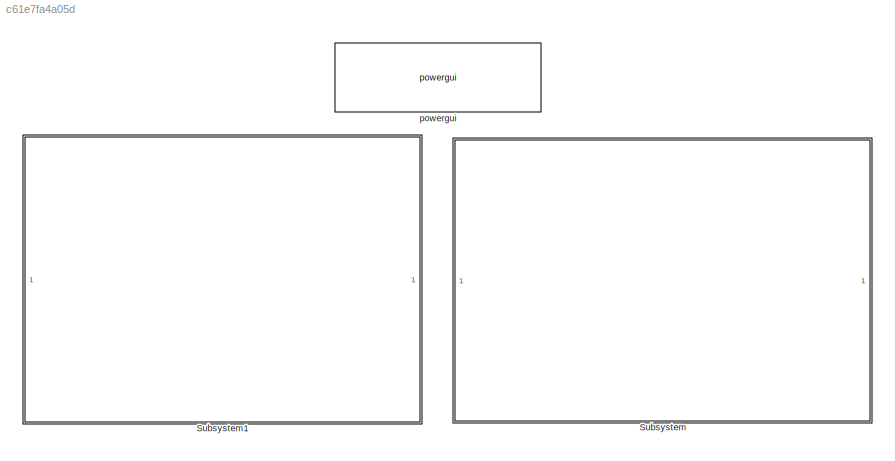
MODEL slx_c61e7fa4a05d
KIND model
CONFIG AbsTol = auto
CONFIG EnableMultiTasking = off
CONFIG FixedStep = auto
CONFIG MaxStep = auto
CONFIG MinStep = auto
CONFIG RelTol = 1e-3
CONFIG SampleTimeConstraint = Unconstrained
CONFIG SolverName = FixedStepAuto
CONFIG StartTime = 0.0
CONFIG StopTime = 10.0
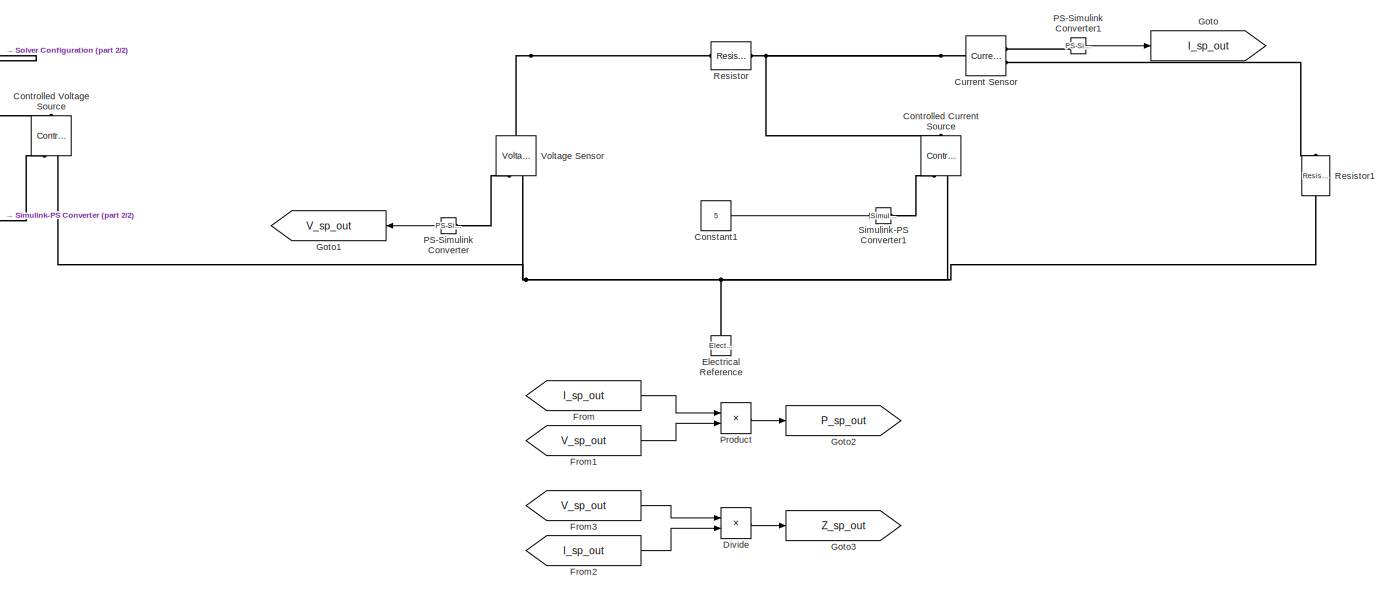
[diagram: Subsystem - part 1/2, most of the canvas]
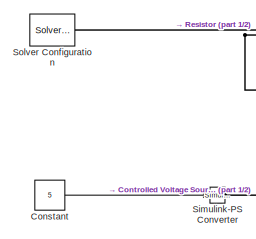
[diagram: Subsystem - part 2/2, top left region]
BLOCK [SubSystem] Subsystem
  Ports = []
  RequestExecContextInheritance = off
BLOCK [Constant] Subsystem/Constant
  Value = 5
BLOCK [Constant] Subsystem/Constant1
  Value = 5
BLOCK [Reference] Subsystem/Controlled Current Source  REF=fl_lib/Electrical/Electrical Sources/Controlled Current
Source
  NameLocation = right
  Ports = [0, 0, 0, 0, 0, 1, 2]
  SourceBlock = fl_lib/Electrical/Electrical Sources/Controlled Current\nSource
  SourceProductBaseCode = PW,SS,VE
  SourceType = Controlled Current\nSource
BLOCK [Reference] Subsystem/Controlled Voltage Source  REF=fl_lib/Electrical/Electrical Sources/Controlled Voltage
Source
  NameLocation = right
  Ports = [0, 0, 0, 0, 0, 1, 2]
  SourceBlock = fl_lib/Electrical/Electrical Sources/Controlled Voltage\nSource
  SourceProductBaseCode = PW,SS,VE
  SourceType = Controlled Voltage\nSource
BLOCK [Reference] Subsystem/Current Sensor  REF=fl_lib/Electrical/Electrical Sensors/Current Sensor
  Ports = [0, 0, 0, 0, 0, 1, 2]
  SourceBlock = fl_lib/Electrical/Electrical Sensors/Current Sensor
  SourceProductBaseCode = PW,SS,VE
  SourceType = Current Sensor
BLOCK [Product] Subsystem/Divide
  Inputs = */
  Ports = [2, 1]
BLOCK [Reference] Subsystem/Electrical Reference  REF=fl_lib/Electrical/Electrical Elements/Electrical Reference
  NameLocation = right
  Ports = [0, 0, 0, 0, 0, 1]
  SourceBlock = fl_lib/Electrical/Electrical Elements/Electrical Reference
  SourceProductBaseCode = PW,SS,VE
  SourceType = Electrical Reference
BLOCK [From] Subsystem/From
  GotoTag = I_sp_out
  TagVisibility = global
BLOCK [From] Subsystem/From1
  GotoTag = V_sp_out
  TagVisibility = global
BLOCK [From] Subsystem/From2
  GotoTag = I_sp_out
  TagVisibility = global
BLOCK [From] Subsystem/From3
  GotoTag = V_sp_out
  TagVisibility = global
BLOCK [Goto] Subsystem/Goto
  GotoTag = I_sp_out
  TagVisibility = global
BLOCK [Goto] Subsystem/Goto1
  GotoTag = V_sp_out
  NameLocation = top
  TagVisibility = global
BLOCK [Goto] Subsystem/Goto2
  GotoTag = P_sp_out
  TagVisibility = global
BLOCK [Goto] Subsystem/Goto3
  GotoTag = Z_sp_out
  TagVisibility = global
BLOCK [Reference] Subsystem/PS-Simulink Converter  REF=nesl_utility/PS-Simulink
Converter
  NameLocation = top
  Ports = [0, 1, 0, 0, 0, 1]
  SourceBlock = nesl_utility/PS-Simulink\nConverter
  SourceProductBaseCode = SS,PW,VE
  SourceType = PS-Simulink\nConverter
BLOCK [Reference] Subsystem/PS-Simulink Converter1  REF=nesl_utility/PS-Simulink
Converter
  Ports = [0, 1, 0, 0, 0, 1]
  SourceBlock = nesl_utility/PS-Simulink\nConverter
  SourceProductBaseCode = SS,PW,VE
  SourceType = PS-Simulink\nConverter
BLOCK [Product] Subsystem/Product
  Ports = [2, 1]
BLOCK [Reference] Subsystem/Resistor  REF=fl_lib/Electrical/Electrical Elements/Resistor
  Ports = [0, 0, 0, 0, 0, 1, 1]
  SourceBlock = fl_lib/Electrical/Electrical Elements/Resistor
  SourceProductBaseCode = PW,SS,VE
  SourceType = Resistor
BLOCK [Reference] Subsystem/Resistor1  REF=fl_lib/Electrical/Electrical Elements/Resistor
  NameLocation = left
  Ports = [0, 0, 0, 0, 0, 1, 1]
  SourceBlock = fl_lib/Electrical/Electrical Elements/Resistor
  SourceProductBaseCode = PW,SS,VE
  SourceType = Resistor
BLOCK [Reference] Subsystem/Simulink-PS Converter  REF=nesl_utility/Simulink-PS
Converter
  Ports = [1, 0, 0, 0, 0, 0, 1]
  SourceBlock = nesl_utility/Simulink-PS\nConverter
  SourceProductBaseCode = SS,PW,VE
  SourceType = Simulink-PS\nConverter
BLOCK [Reference] Subsystem/Simulink-PS Converter1  REF=nesl_utility/Simulink-PS
Converter
  Ports = [1, 0, 0, 0, 0, 0, 1]
  SourceBlock = nesl_utility/Simulink-PS\nConverter
  SourceProductBaseCode = SS,PW,VE
  SourceType = Simulink-PS\nConverter
BLOCK [Reference] Subsystem/Solver Configuration  REF=nesl_utility/Solver
Configuration
  Ports = [0, 0, 0, 0, 0, 0, 1]
  SourceBlock = nesl_utility/Solver\nConfiguration
  SourceProductBaseCode = SS,PW,VE
  SourceType = Solver\nConfiguration
BLOCK [Reference] Subsystem/Voltage Sensor  REF=fl_lib/Electrical/Electrical Sensors/Voltage Sensor
  NameLocation = right
  Ports = [0, 0, 0, 0, 0, 1, 2]
  SourceBlock = fl_lib/Electrical/Electrical Sensors/Voltage Sensor
  SourceProductBaseCode = PW,SS,VE
  SourceType = Voltage Sensor
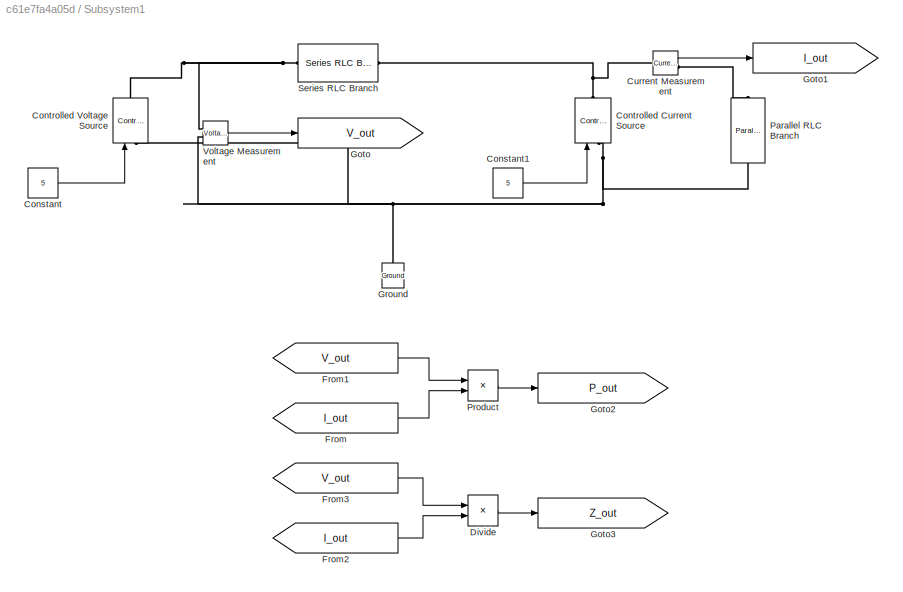
BLOCK [SubSystem] Subsystem1
  Ports = []
  RequestExecContextInheritance = off
BLOCK [Constant] Subsystem1/Constant
  Value = 5
BLOCK [Constant] Subsystem1/Constant1
  Value = 5
BLOCK [Reference] Subsystem1/Controlled Current Source  REF=spsControlledCurrentSourceLib/Controlled Current Source
  Ports = [1, 0, 0, 0, 0, 1, 1]
  SourceBlock = spsControlledCurrentSourceLib/Controlled Current Source
  SourceProductBaseCode = PS
  SourceType = Controlled Current Source
BLOCK [Reference] Subsystem1/Controlled Voltage Source  REF=spsControlledVoltageSourceLib/Controlled Voltage Source
  Ports = [1, 0, 0, 0, 0, 1, 1]
  SourceBlock = spsControlledVoltageSourceLib/Controlled Voltage Source
  SourceProductBaseCode = PS
  SourceType = Controlled Voltage Source
BLOCK [Reference] Subsystem1/Current Measurement  REF=spsCurrentMeasurementLib/Current Measurement
  Ports = [0, 1, 0, 0, 0, 1, 1]
  SourceBlock = spsCurrentMeasurementLib/Current Measurement
  SourceProductBaseCode = PS
  SourceType = Current Measurement
  UserDataPersistent = on
BLOCK [Product] Subsystem1/Divide
  Inputs = */
  Ports = [2, 1]
BLOCK [From] Subsystem1/From
  GotoTag = I_out
BLOCK [From] Subsystem1/From1
  GotoTag = V_out
BLOCK [From] Subsystem1/From2
  GotoTag = I_out
BLOCK [From] Subsystem1/From3
  GotoTag = V_out
BLOCK [Goto] Subsystem1/Goto
  GotoTag = V_out
BLOCK [Goto] Subsystem1/Goto1
  GotoTag = I_out
BLOCK [Goto] Subsystem1/Goto2
  GotoTag = P_out
  TagVisibility = global
BLOCK [Goto] Subsystem1/Goto3
  GotoTag = Z_out
  TagVisibility = global
BLOCK [Reference] Subsystem1/Ground  REF=spsGroundLib/Ground
  NameLocation = right
  Ports = [0, 0, 0, 0, 0, 1]
  SourceBlock = spsGroundLib/Ground
  SourceProductBaseCode = PS
  SourceType = Ground
BLOCK [Reference] Subsystem1/Parallel RLC Branch  REF=spsParallelRLCBranchLib/Parallel RLC Branch
  AttributesFormatString = \n
  NameLocation = left
  Ports = [0, 0, 0, 0, 0, 1, 1]
  SourceBlock = spsParallelRLCBranchLib/Parallel RLC Branch
  SourceProductBaseCode = PS
  SourceType = Parallel RLC Branch
BLOCK [Product] Subsystem1/Product
  Ports = [2, 1]
BLOCK [Reference] Subsystem1/Series RLC Branch  REF=spsSeriesRLCBranchLib/Series RLC Branch
  Ports = [0, 0, 0, 0, 0, 1, 1]
  SourceBlock = spsSeriesRLCBranchLib/Series RLC Branch
  SourceProductBaseCode = PS
  SourceType = Series RLC Branch
BLOCK [Reference] Subsystem1/Voltage Measurement  REF=spsVoltageMeasurementLib/Voltage Measurement
  Ports = [0, 1, 0, 0, 0, 2]
  SourceBlock = spsVoltageMeasurementLib/Voltage Measurement
  SourceProductBaseCode = PS
  SourceType = Voltage Measurement
  UserDataPersistent = on
BLOCK [Reference] powergui  REF=spspowerguiLib/powergui
  Ports = []
  Priority = 1
  SourceBlock = spspowerguiLib/powergui
  SourceProductBaseCode = PS
  SourceType = PSB option menu block
LINE Subsystem/Constant1:1 -> Subsystem/Simulink-PS Converter1:1
LINE Subsystem/Constant:1 -> Subsystem/Simulink-PS Converter:1
LINE Subsystem/Divide:1 -> Subsystem/Goto3:1
LINE Subsystem/From1:1 -> Subsystem/Product:2
LINE Subsystem/From2:1 -> Subsystem/Divide:2
LINE Subsystem/From3:1 -> Subsystem/Divide:1
LINE Subsystem/From:1 -> Subsystem/Product:1
LINE Subsystem/PS-Simulink Converter1:1 -> Subsystem/Goto:1
LINE Subsystem/PS-Simulink Converter:1 -> Subsystem/Goto1:1
LINE Subsystem/Product:1 -> Subsystem/Goto2:1
LINE Subsystem1/Constant1:1 -> Subsystem1/Controlled Current Source:1
LINE Subsystem1/Constant:1 -> Subsystem1/Controlled Voltage Source:1
LINE Subsystem1/Current Measurement:1 -> Subsystem1/Goto1:1
LINE Subsystem1/Divide:1 -> Subsystem1/Goto3:1
LINE Subsystem1/From1:1 -> Subsystem1/Product:1
LINE Subsystem1/From2:1 -> Subsystem1/Divide:2
LINE Subsystem1/From3:1 -> Subsystem1/Divide:1
LINE Subsystem1/From:1 -> Subsystem1/Product:2
LINE Subsystem1/Product:1 -> Subsystem1/Goto2:1
LINE Subsystem1/Voltage Measurement:1 -> Subsystem1/Goto:1
PNET net1: Subsystem/Controlled Current Source:LConn1 -- Subsystem/Current Sensor:LConn1 -- Subsystem/Resistor:RConn1
PLINE Subsystem/Controlled Current Source:RConn1 -- Subsystem/Simulink-PS Converter1:RConn1
PNET net2: Subsystem/Controlled Current Source:RConn2 -- Subsystem/Controlled Voltage Source:RConn2 -- Subsystem/Electrical Reference:LConn1 -- Subsystem/Resistor1:RConn1 -- Subsystem/Voltage Sensor:RConn2
PNET net3: Subsystem/Controlled Voltage Source:LConn1 -- Subsystem/Resistor:LConn1 -- Subsystem/Solver Configuration:RConn1 -- Subsystem/Voltage Sensor:LConn1
PLINE Subsystem/Controlled Voltage Source:RConn1 -- Subsystem/Simulink-PS Converter:RConn1
PLINE Subsystem/Current Sensor:RConn1 -- Subsystem/PS-Simulink Converter1:LConn1
PLINE Subsystem/Current Sensor:RConn2 -- Subsystem/Resistor1:LConn1
PLINE Subsystem/PS-Simulink Converter:LConn1 -- Subsystem/Voltage Sensor:RConn1
PNET net4: Subsystem1/Controlled Current Source:LConn1 -- Subsystem1/Controlled Voltage Source:LConn1 -- Subsystem1/Ground:LConn1 -- Subsystem1/Parallel RLC Branch:RConn1 -- Subsystem1/Voltage Measurement:LConn2
PNET net5: Subsystem1/Controlled Current Source:RConn1 -- Subsystem1/Current Measurement:LConn1 -- Subsystem1/Series RLC Branch:RConn1
PNET net6: Subsystem1/Controlled Voltage Source:RConn1 -- Subsystem1/Series RLC Branch:LConn1 -- Subsystem1/Voltage Measurement:LConn1
PLINE Subsystem1/Current Measurement:RConn1 -- Subsystem1/Parallel RLC Branch:LConn1
note: PNET lines group multi-terminal physical nets as a canonical sorted terminal list (undirected conserving connections); 2-terminal nets keep the pairwise PLINE form
